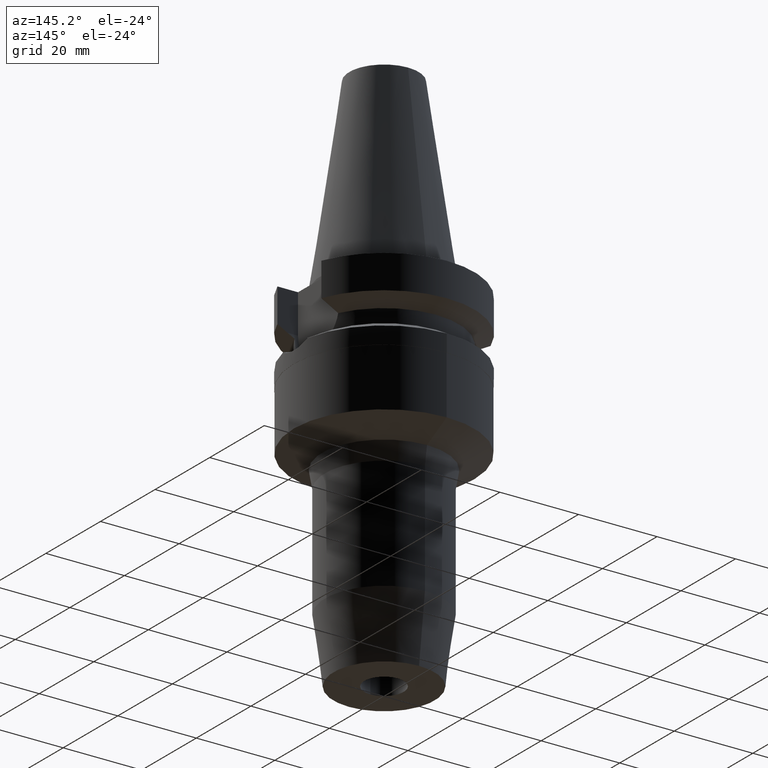
[diagram: clean part render]
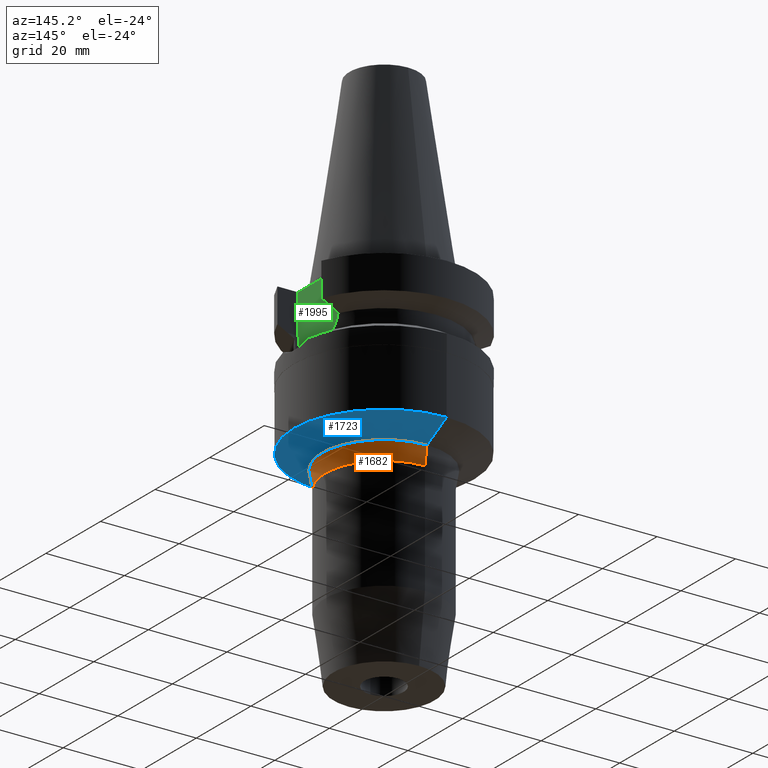
[diagram: same view with three faces highlighted in distinct colors, each labeled with its STEP entity id]
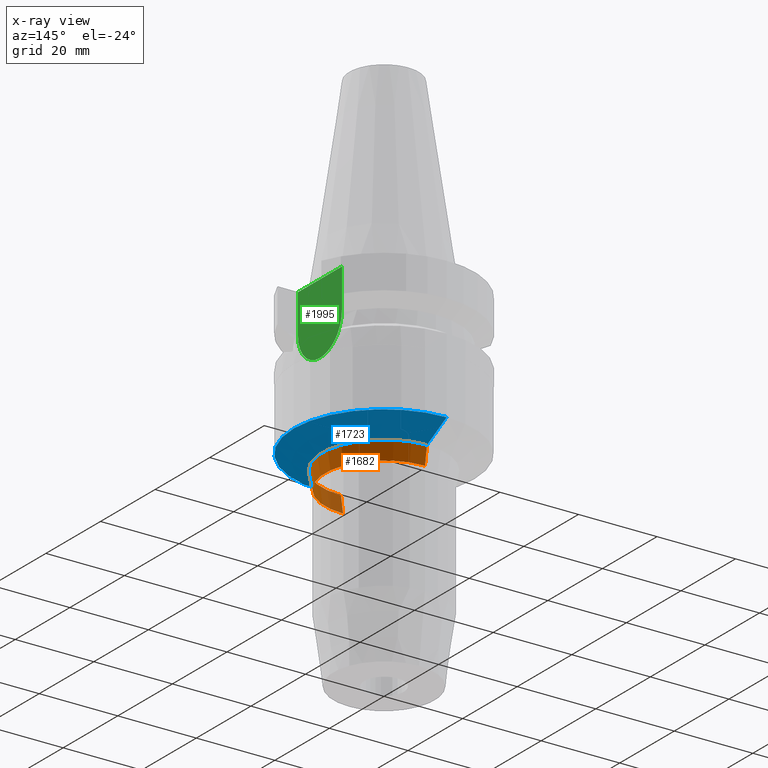
[diagram: x-ray of the same camera — body ghosted, the three highlighted faces saturated]
A machine part, auxiliary view with three faces highlighted in distinct colors.
The next image is the same camera in x-ray (body ghosted, the three faces saturated) — at least one of them is partly hidden behind the body in this view.
Their STEP definitions:

[orange] entity #1682 — the highlighted conical surface has half-angle 9.616 deg.
#430=DIRECTION('',(0.E0,-1.670440822463E-1,-9.859494280066E-1));
#431=VECTOR('',#430,4.539432091228E0);
#432=CARTESIAN_POINT('',(0.E0,1.575828526760E1,-4.052034952618E1));
#433=LINE('',#432,#431);
#437=CARTESIAN_POINT('',(0.E0,0.E0,-4.4996E1));
#438=DIRECTION('',(0.E0,0.E0,-1.E0));
#439=DIRECTION('',(0.E0,1.E0,0.E0));
#440=AXIS2_PLACEMENT_3D('',#437,#438,#439);
#445=CARTESIAN_POINT('',(0.E0,0.E0,-4.052034952618E1));
#446=DIRECTION('',(0.E0,0.E0,1.E0));
#447=DIRECTION('',(0.E0,-1.E0,0.E0));
#448=AXIS2_PLACEMENT_3D('',#445,#446,#447);
#453=DIRECTION('',(0.E0,1.670440822463E-1,-9.859494280066E-1));
#454=VECTOR('',#453,4.539432091228E0);
#455=CARTESIAN_POINT('',(0.E0,-1.575828526760E1,-4.052034952618E1));
#456=LINE('',#455,#454);
#1178=CARTESIAN_POINT('',(0.E0,1.5E1,-4.4996E1));
#1179=VERTEX_POINT('',#1178);
#1180=CARTESIAN_POINT('',(0.E0,-1.5E1,-4.4996E1));
#1181=VERTEX_POINT('',#1180);
#1182=CARTESIAN_POINT('',(0.E0,1.575828526760E1,-4.052034952618E1));
#1183=VERTEX_POINT('',#1182);
#1184=CARTESIAN_POINT('',(0.E0,-1.575828526760E1,-4.052034952618E1));
#1185=VERTEX_POINT('',#1184);
#1668=CARTESIAN_POINT('',(0.E0,0.E0,-4.275817476309E1));
#1669=DIRECTION('',(0.E0,0.E0,1.E0));
#1670=DIRECTION('',(0.E0,1.E0,0.E0));
#1671=AXIS2_PLACEMENT_3D('',#1668,#1669,#1670);
#1672=CONICAL_SURFACE('',#1671,1.537914263380E1,9.616E0);
#1674=ORIENTED_EDGE('',*,*,#1673,.T.);
#1675=ORIENTED_EDGE('',*,*,#1663,.T.);
#1677=ORIENTED_EDGE('',*,*,#1676,.F.);
#1679=ORIENTED_EDGE('',*,*,#1678,.T.);
#1680=EDGE_LOOP('',(#1674,#1675,#1677,#1679));
#1681=FACE_OUTER_BOUND('',#1680,.F.);
#441=CIRCLE('',#440,1.5E1);
#449=CIRCLE('',#448,1.575828526760E1);
#1663=EDGE_CURVE('',#1179,#1181,#441,.T.);
#1673=EDGE_CURVE('',#1183,#1179,#433,.T.);
#1676=EDGE_CURVE('',#1185,#1181,#456,.T.);
#1678=EDGE_CURVE('',#1185,#1183,#449,.T.);
#1682=ADVANCED_FACE('',(#1681),#1672,.T.);

[blue] entity #1723 — the highlighted conical surface has half-angle 62.647 deg.
#445=CARTESIAN_POINT('',(0.E0,0.E0,-4.052034952618E1));
#446=DIRECTION('',(0.E0,0.E0,1.E0));
#447=DIRECTION('',(0.E0,-1.E0,0.E0));
#448=AXIS2_PLACEMENT_3D('',#445,#446,#447);
#476=DIRECTION('',(0.E0,8.881925904573E-1,-4.594713508553E-1));
#477=VECTOR('',#476,8.097021760448E0);
#478=CARTESIAN_POINT('',(0.E0,-2.295E1,-3.68E1));
#479=LINE('',#478,#477);
#491=DIRECTION('',(0.E0,-8.881925904573E-1,-4.594713508553E-1));
#492=VECTOR('',#491,8.097021760448E0);
#493=CARTESIAN_POINT('',(0.E0,2.295E1,-3.68E1));
#494=LINE('',#493,#492);
#498=CARTESIAN_POINT('',(0.E0,0.E0,-3.68E1));
#499=DIRECTION('',(0.E0,0.E0,1.E0));
#500=DIRECTION('',(0.E0,-1.E0,0.E0));
#501=AXIS2_PLACEMENT_3D('',#498,#499,#500);
#1182=CARTESIAN_POINT('',(0.E0,1.575828526760E1,-4.052034952618E1));
#1183=VERTEX_POINT('',#1182);
#1184=CARTESIAN_POINT('',(0.E0,-1.575828526760E1,-4.052034952618E1));
#1185=VERTEX_POINT('',#1184);
#1186=CARTESIAN_POINT('',(0.E0,2.295E1,-3.68E1));
#1187=VERTEX_POINT('',#1186);
#1188=CARTESIAN_POINT('',(0.E0,-2.295E1,-3.68E1));
#1189=VERTEX_POINT('',#1188);
#1711=CARTESIAN_POINT('',(0.E0,0.E0,-3.866017476309E1));
#1712=DIRECTION('',(0.E0,0.E0,1.E0));
#1713=DIRECTION('',(0.E0,1.E0,0.E0));
#1714=AXIS2_PLACEMENT_3D('',#1711,#1712,#1713);
#1715=CONICAL_SURFACE('',#1714,1.935414263380E1,6.2647E1);
#1716=ORIENTED_EDGE('',*,*,#1701,.T.);
#1717=ORIENTED_EDGE('',*,*,#1678,.F.);
#1718=ORIENTED_EDGE('',*,*,#1705,.F.);
#1720=ORIENTED_EDGE('',*,*,#1719,.T.);
#1721=EDGE_LOOP('',(#1716,#1717,#1718,#1720));
#1722=FACE_OUTER_BOUND('',#1721,.F.);
#449=CIRCLE('',#448,1.575828526760E1);
#502=CIRCLE('',#501,2.295E1);
#1678=EDGE_CURVE('',#1185,#1183,#449,.T.);
#1701=EDGE_CURVE('',#1187,#1183,#494,.T.);
#1705=EDGE_CURVE('',#1189,#1185,#479,.T.);
#1719=EDGE_CURVE('',#1189,#1187,#502,.T.);
#1723=ADVANCED_FACE('',(#1722),#1715,.T.);

[green] entity #1995 — the highlighted planar face has unit normal (1, 0, 0).
#847=DIRECTION('',(0.E0,0.E0,-1.E0));
#848=VECTOR('',#847,9.95E0);
#849=CARTESIAN_POINT('',(1.63E1,8.05E0,-1.E0));
#850=LINE('',#849,#848);
#854=CARTESIAN_POINT('',(1.63E1,0.E0,-1.095E1));
#855=DIRECTION('',(-1.E0,0.E0,0.E0));
#856=DIRECTION('',(0.E0,1.E0,0.E0));
#857=AXIS2_PLACEMENT_3D('',#854,#855,#856);
#862=CARTESIAN_POINT('',(1.63E1,0.E0,-1.095E1));
#863=DIRECTION('',(-1.E0,0.E0,0.E0));
#864=DIRECTION('',(0.E0,0.E0,-1.E0));
#865=AXIS2_PLACEMENT_3D('',#862,#863,#864);
#870=DIRECTION('',(0.E0,0.E0,1.E0));
#871=VECTOR('',#870,9.95E0);
#872=CARTESIAN_POINT('',(1.63E1,-8.05E0,-1.095E1));
#873=LINE('',#872,#871);
#907=DIRECTION('',(0.E0,-1.E0,0.E0));
#908=VECTOR('',#907,1.61E1);
#909=CARTESIAN_POINT('',(1.63E1,8.05E0,-1.E0));
#910=LINE('',#909,#908);
#1208=CARTESIAN_POINT('',(1.63E1,-8.05E0,-1.095E1));
#1209=VERTEX_POINT('',#1208);
#1210=CARTESIAN_POINT('',(1.63E1,0.E0,-1.9E1));
#1211=VERTEX_POINT('',#1210);
#1212=CARTESIAN_POINT('',(1.63E1,8.05E0,-1.095E1));
#1213=VERTEX_POINT('',#1212);
#1262=CARTESIAN_POINT('',(1.63E1,8.05E0,-1.E0));
#1263=VERTEX_POINT('',#1262);
#1264=CARTESIAN_POINT('',(1.63E1,-8.05E0,-1.E0));
#1265=VERTEX_POINT('',#1264);
#1981=CARTESIAN_POINT('',(1.63E1,0.E0,0.E0));
#1982=DIRECTION('',(1.E0,0.E0,0.E0));
#1983=DIRECTION('',(0.E0,0.E0,-1.E0));
#1984=AXIS2_PLACEMENT_3D('',#1981,#1982,#1983);
#1985=PLANE('',#1984);
#1987=ORIENTED_EDGE('',*,*,#1986,.F.);
#1988=ORIENTED_EDGE('',*,*,#1973,.T.);
#1989=ORIENTED_EDGE('',*,*,#1806,.T.);
#1990=ORIENTED_EDGE('',*,*,#1804,.T.);
#1992=ORIENTED_EDGE('',*,*,#1991,.T.);
#1993=EDGE_LOOP('',(#1987,#1988,#1989,#1990,#1992));
#1994=FACE_OUTER_BOUND('',#1993,.F.);
#858=CIRCLE('',#857,8.05E0);
#866=CIRCLE('',#865,8.05E0);
#1804=EDGE_CURVE('',#1211,#1209,#866,.T.);
#1806=EDGE_CURVE('',#1213,#1211,#858,.T.);
#1973=EDGE_CURVE('',#1263,#1213,#850,.T.);
#1986=EDGE_CURVE('',#1263,#1265,#910,.T.);
#1991=EDGE_CURVE('',#1209,#1265,#873,.T.);
#1995=ADVANCED_FACE('',(#1994),#1985,.T.);